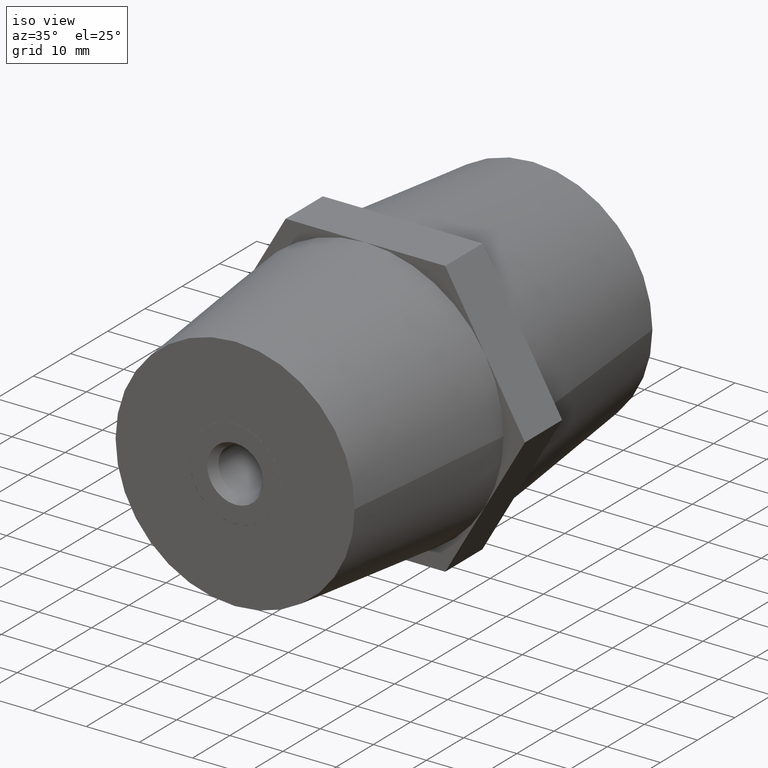
[diagram: clean part render]
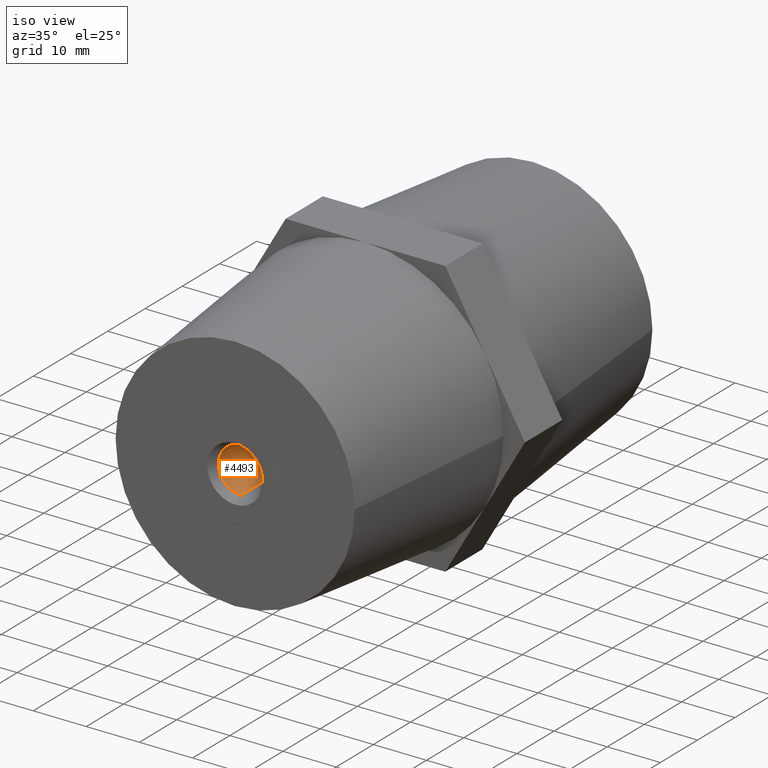
[diagram: same view with one face highlighted and labeled with its STEP entity id]
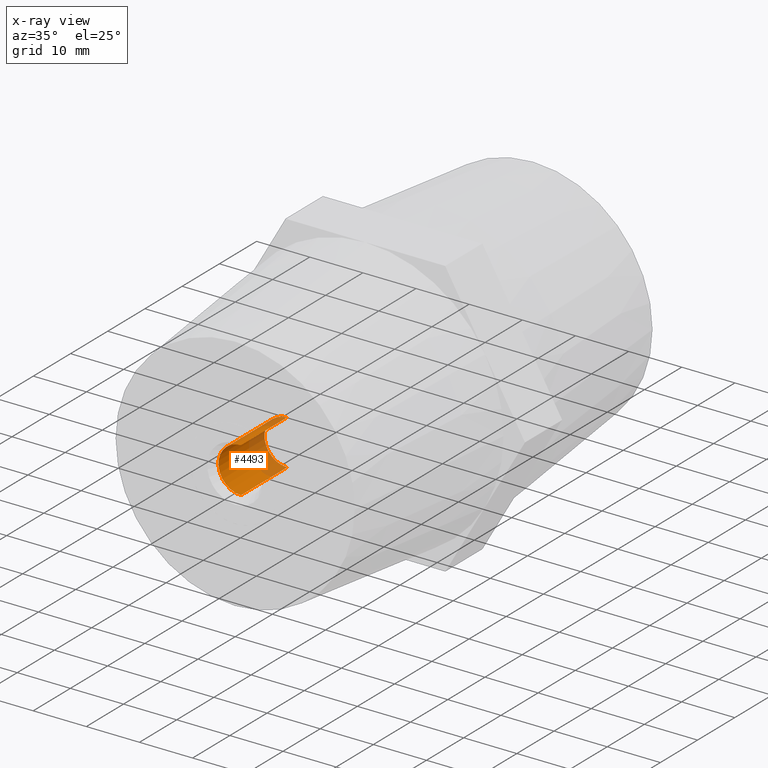
[diagram: x-ray of the same camera — body ghosted, the highlighted face saturated]
A machine part, iso view. The second image highlights one B-rep face of the part: STEP entity #4493.
The next image is the same camera in x-ray: the body ghosted, the highlighted face saturated — about 31% of this face is hidden behind the body in this view.
In plain terms, the highlighted cylindrical surface (edge-blend (fillet) strip) has radius 4.25 mm, axis along (0, -1, -0).
Its self-contained STEP definition (entity closure, byte-faithful):
#70 = AXIS2_PLACEMENT_3D ( 'NONE', #1967, #1578, #5137 ) ;
#153 = CYLINDRICAL_SURFACE ( 'NONE', #3544, 4.250000000000000000 ) ;
#285 = ORIENTED_EDGE ( 'NONE', *, *, #2875, .F. ) ;
#503 = DIRECTION ( 'NONE',  ( 0.0000000000000000000, 0.0000000000000000000, 1.000000000000000000 ) ) ;
#535 = DIRECTION ( 'NONE',  ( 0.0000000000000000000, 1.000000000000000000, 0.0000000000000000000 ) ) ;
#552 = VERTEX_POINT ( 'NONE', #4805 ) ;
#760 = DIRECTION ( 'NONE',  ( 0.0000000000000000000, 1.000000000000000000, 0.0000000000000000000 ) ) ;
#817 = CARTESIAN_POINT ( 'NONE',  ( 0.0000000000000000000, 15.43031442288250000, 4.250000000000000000 ) ) ;
#923 = DIRECTION ( 'NONE',  ( 0.0000000000000000000, 1.000000000000000000, 0.0000000000000000000 ) ) ;
#1016 = CIRCLE ( 'NONE', #70, 4.250000000000000000 ) ;
#1108 = VERTEX_POINT ( 'NONE', #817 ) ;
#1130 = VECTOR ( 'NONE', #760, 1000.000000000000000 ) ;
#1147 = CARTESIAN_POINT ( 'NONE',  ( 5.204748896376250700E-016, 17.00000000000000000, -4.250000000000000000 ) ) ;
#1162 = LINE ( 'NONE', #1503, #4817 ) ;
#1167 = VERTEX_POINT ( 'NONE', #2535 ) ;
#1503 = CARTESIAN_POINT ( 'NONE',  ( 0.0000000000000000000, 17.00000000000000000, 4.250000000000000000 ) ) ;
#1578 = DIRECTION ( 'NONE',  ( 0.0000000000000000000, 1.000000000000000000, 0.0000000000000000000 ) ) ;
#1697 = ORIENTED_EDGE ( 'NONE', *, *, #4015, .F. ) ;
#1889 = EDGE_CURVE ( 'NONE', #1167, #552, #3249, .T. ) ;
#1967 = CARTESIAN_POINT ( 'NONE',  ( 0.0000000000000000000, 15.43031442288250000, 0.0000000000000000000 ) ) ;
#2028 = EDGE_LOOP ( 'NONE', ( #1697, #2979, #4646, #285 ) ) ;
#2513 = CARTESIAN_POINT ( 'NONE',  ( 0.0000000000000000000, 3.050000000000000300, 0.0000000000000000000 ) ) ;
#2535 = CARTESIAN_POINT ( 'NONE',  ( 5.204748896376250700E-016, 3.050000000000000300, -4.250000000000000000 ) ) ;
#2779 = FACE_OUTER_BOUND ( 'NONE', #2028, .T. ) ;
#2875 = EDGE_CURVE ( 'NONE', #4390, #1108, #1162, .T. ) ;
#2979 = ORIENTED_EDGE ( 'NONE', *, *, #1889, .T. ) ;
#3249 = LINE ( 'NONE', #1147, #1130 ) ;
#3544 = AXIS2_PLACEMENT_3D ( 'NONE', #4091, #923, #4511 ) ;
#3653 = EDGE_CURVE ( 'NONE', #552, #1108, #1016, .T. ) ;
#3832 = DIRECTION ( 'NONE',  ( 0.0000000000000000000, 1.000000000000000000, 0.0000000000000000000 ) ) ;
#4015 = EDGE_CURVE ( 'NONE', #1167, #4390, #4122, .T. ) ;
#4045 = CARTESIAN_POINT ( 'NONE',  ( 0.0000000000000000000, 3.050000000000000300, 4.250000000000000000 ) ) ;
#4091 = CARTESIAN_POINT ( 'NONE',  ( 0.0000000000000000000, 17.00000000000000000, 0.0000000000000000000 ) ) ;
#4122 = CIRCLE ( 'NONE', #4369, 4.250000000000000000 ) ;
#4369 = AXIS2_PLACEMENT_3D ( 'NONE', #2513, #535, #503 ) ;
#4390 = VERTEX_POINT ( 'NONE', #4045 ) ;
#4493 = ADVANCED_FACE ( 'NONE', ( #2779 ), #153, .F. ) ;
#4511 = DIRECTION ( 'NONE',  ( 0.0000000000000000000, 0.0000000000000000000, 1.000000000000000000 ) ) ;
#4646 = ORIENTED_EDGE ( 'NONE', *, *, #3653, .T. ) ;
#4805 = CARTESIAN_POINT ( 'NONE',  ( 5.204748896376250700E-016, 15.43031442288250000, -4.250000000000000000 ) ) ;
#4817 = VECTOR ( 'NONE', #3832, 1000.000000000000000 ) ;
#5137 = DIRECTION ( 'NONE',  ( 0.0000000000000000000, 0.0000000000000000000, 1.000000000000000000 ) ) ;